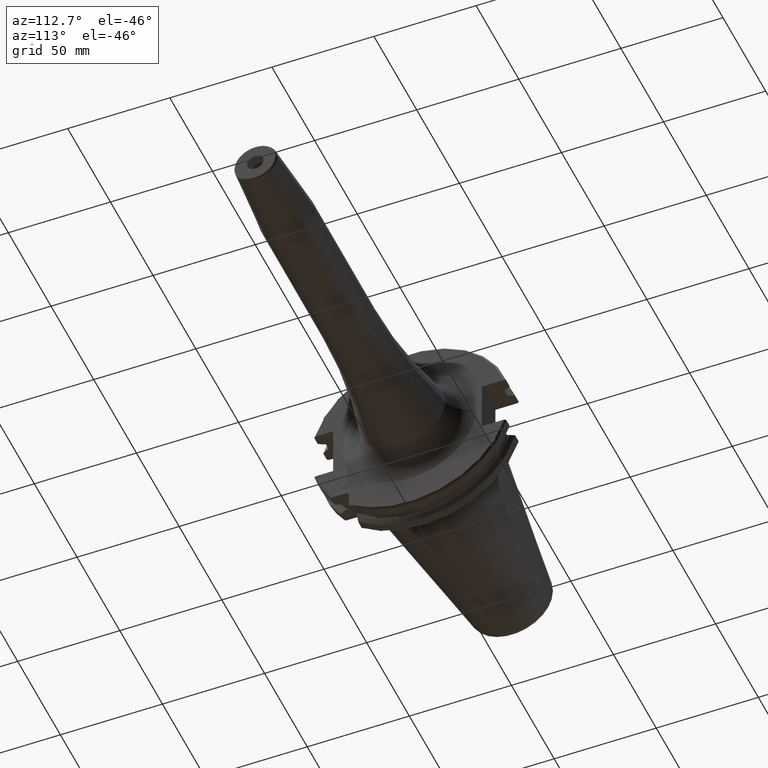
[diagram: clean part render]
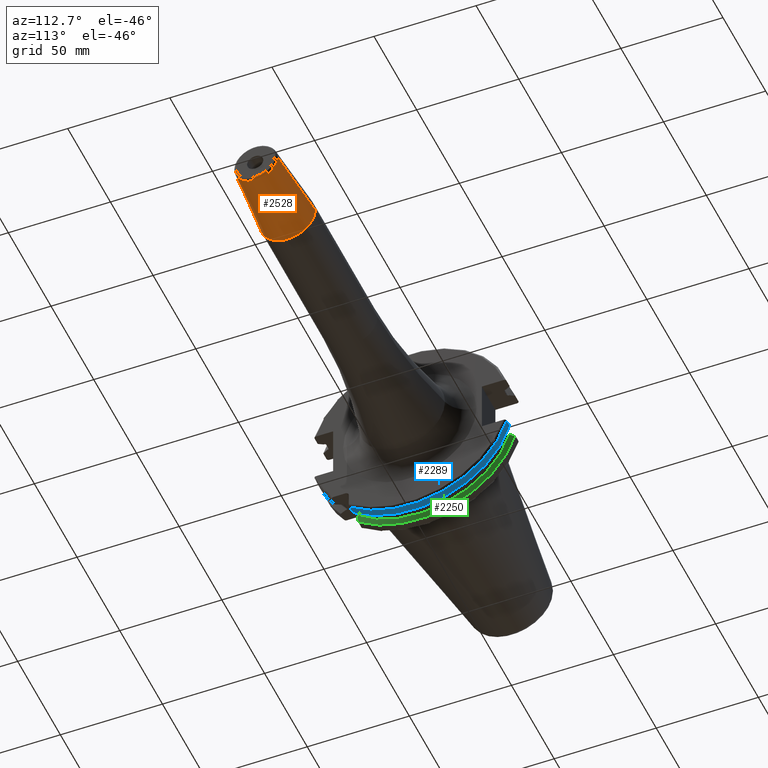
[diagram: same view with three faces highlighted in distinct colors, each labeled with its STEP entity id]
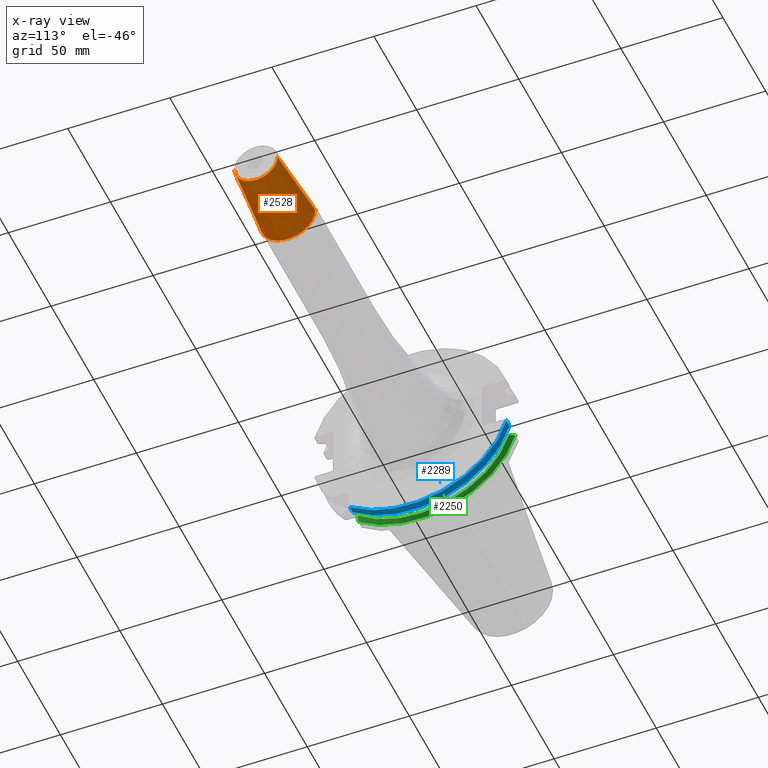
[diagram: x-ray of the same camera — body ghosted, the three highlighted faces saturated]
A machine part, auxiliary view with three faces highlighted in distinct colors.
The next image is the same camera in x-ray (body ghosted, the three faces saturated) — at least one of them is partly hidden behind the body in this view.
Their STEP definitions:

[orange] entity #2528 — the highlighted conical surface has half-angle 4.5 deg.
#935=CARTESIAN_POINT('',(1.618813857915E2,0.E0,0.E0));
#936=DIRECTION('',(-1.E0,0.E0,0.E0));
#937=DIRECTION('',(0.E0,1.E0,0.E0));
#938=AXIS2_PLACEMENT_3D('',#935,#936,#937);
#969=CARTESIAN_POINT('',(1.990784590957E2,0.E0,0.E0));
#970=DIRECTION('',(-1.E0,0.E0,0.E0));
#971=DIRECTION('',(0.E0,1.E0,0.E0));
#972=AXIS2_PLACEMENT_3D('',#969,#970,#971);
#974=DIRECTION('',(-9.969173337331E-1,7.845909572785E-2,1.323262560744E-13));
#975=VECTOR('',#974,3.731209403789E1);
#976=CARTESIAN_POINT('',(1.990784590957E2,1.057252684207E1,
-4.935716437151E-12));
#977=LINE('',#976,#975);
#978=DIRECTION('',(-9.969173337331E-1,-7.845909572785E-2,-1.323175808637E-13));
#979=VECTOR('',#978,3.731209403789E1);
#980=CARTESIAN_POINT('',(1.990784590957E2,-1.057252684207E1,
4.935392746872E-12));
#981=LINE('',#980,#979);
#1452=CARTESIAN_POINT('',(1.618813857915E2,1.35E1,0.E0));
#1453=CARTESIAN_POINT('',(1.618813857915E2,-1.35E1,0.E0));
#1454=VERTEX_POINT('',#1452);
#1455=VERTEX_POINT('',#1453);
#1456=CARTESIAN_POINT('',(1.990784590957E2,1.057252684207E1,0.E0));
#1457=CARTESIAN_POINT('',(1.990784590957E2,-1.057252684207E1,0.E0));
#1458=VERTEX_POINT('',#1456);
#1459=VERTEX_POINT('',#1457);
#2517=CARTESIAN_POINT('',(1.804799224436E2,0.E0,0.E0));
#2518=DIRECTION('',(-1.E0,0.E0,0.E0));
#2519=DIRECTION('',(0.E0,1.E0,0.E0));
#2520=AXIS2_PLACEMENT_3D('',#2517,#2518,#2519);
#2521=CONICAL_SURFACE('',#2520,1.203626342104E1,4.5E0);
#2522=ORIENTED_EDGE('',*,*,#2508,.F.);
#2523=ORIENTED_EDGE('',*,*,#2483,.T.);
#2524=ORIENTED_EDGE('',*,*,#2453,.T.);
#2525=ORIENTED_EDGE('',*,*,#2480,.F.);
#2526=EDGE_LOOP('',(#2522,#2523,#2524,#2525));
#2527=FACE_OUTER_BOUND('',#2526,.F.);
#2528=ADVANCED_FACE('',(#2527),#2521,.T.);
#939=CIRCLE('',#938,1.35E1);
#973=CIRCLE('',#972,1.057252684207E1);
#2453=EDGE_CURVE('',#1454,#1455,#939,.T.);
#2480=EDGE_CURVE('',#1459,#1455,#981,.T.);
#2483=EDGE_CURVE('',#1458,#1454,#977,.T.);
#2508=EDGE_CURVE('',#1458,#1459,#973,.T.);

[blue] entity #2289 — the highlighted cylindrical surface (partial cylindrical patch) has radius 48.7375 mm, axis along (1, 0, 0).
#736=DIRECTION('',(1.E0,0.E0,0.E0));
#737=VECTOR('',#736,3.634621614173E0);
#738=CARTESIAN_POINT('',(1.441537838583E1,4.699929686974E1,-1.29E1));
#739=LINE('',#738,#737);
#740=CARTESIAN_POINT('',(1.441537838583E1,0.E0,0.E0));
#741=DIRECTION('',(1.E0,0.E0,0.E0));
#742=DIRECTION('',(0.E0,-6.124647345473E-1,-7.904979120376E-1));
#743=AXIS2_PLACEMENT_3D('',#740,#741,#742);
#745=DIRECTION('',(1.E0,0.E0,0.E0));
#746=VECTOR('',#745,3.634621614173E0);
#747=CARTESIAN_POINT('',(1.441537838583E1,-2.985E1,-3.852689198793E1));
#748=LINE('',#747,#746);
#749=CARTESIAN_POINT('',(1.805E1,0.E0,0.E0));
#750=DIRECTION('',(-1.E0,0.E0,0.E0));
#751=DIRECTION('',(0.E0,9.643354064066E-1,-2.646832521159E-1));
#752=AXIS2_PLACEMENT_3D('',#749,#750,#751);
#790=CARTESIAN_POINT('',(1.441537838583E1,4.699929686974E1,-1.29E1));
#802=CARTESIAN_POINT('',(1.441537838583E1,-2.985E1,-3.852689198793E1));
#1344=VERTEX_POINT('',#790);
#1394=CARTESIAN_POINT('',(1.805E1,4.699929686974E1,-1.29E1));
#1395=VERTEX_POINT('',#1394);
#1419=CARTESIAN_POINT('',(1.805E1,-2.985E1,-3.852689198793E1));
#1420=VERTEX_POINT('',#1419);
#1444=VERTEX_POINT('',#802);
#2276=CARTESIAN_POINT('',(-1.076325E2,0.E0,0.E0));
#2277=DIRECTION('',(1.E0,0.E0,0.E0));
#2278=DIRECTION('',(0.E0,-1.E0,0.E0));
#2279=AXIS2_PLACEMENT_3D('',#2276,#2277,#2278);
#2280=CYLINDRICAL_SURFACE('',#2279,4.87375E1);
#2281=ORIENTED_EDGE('',*,*,#1849,.F.);
#2283=ORIENTED_EDGE('',*,*,#2282,.F.);
#2284=ORIENTED_EDGE('',*,*,#1699,.T.);
#2286=ORIENTED_EDGE('',*,*,#2285,.F.);
#2287=EDGE_LOOP('',(#2281,#2283,#2284,#2286));
#2288=FACE_OUTER_BOUND('',#2287,.F.);
#2289=ADVANCED_FACE('',(#2288),#2280,.T.);
#744=CIRCLE('',#743,4.87375E1);
#753=CIRCLE('',#752,4.87375E1);
#1699=EDGE_CURVE('',#1444,#1420,#748,.T.);
#1849=EDGE_CURVE('',#1344,#1395,#739,.T.);
#2282=EDGE_CURVE('',#1444,#1344,#744,.T.);
#2285=EDGE_CURVE('',#1395,#1420,#753,.T.);

[green] entity #2250 — the highlighted conical surface has half-angle 60 deg.
#311=CARTESIAN_POINT('',(9.2625E0,0.E0,0.E0));
#312=DIRECTION('',(-1.E0,0.E0,0.E0));
#313=DIRECTION('',(0.E0,9.606411165078E-1,-2.777924499957E-1));
#314=AXIS2_PLACEMENT_3D('',#311,#312,#313);
#695=CARTESIAN_POINT('',(9.2625E0,4.460981716077E1,-1.29E1));
#696=CARTESIAN_POINT('',(9.118283773553E0,4.486984125009E1,-1.29E1));
#697=CARTESIAN_POINT('',(8.827633549554E0,4.539353719098E1,-1.29E1));
#698=CARTESIAN_POINT('',(8.385043355543E0,4.618996220278E1,-1.29E1));
#699=CARTESIAN_POINT('',(8.085504386120E0,4.672829507383E1,-1.29E1));
#700=CARTESIAN_POINT('',(7.934621614173E0,4.699929686974E1,-1.29E1));
#702=CARTESIAN_POINT('',(9.2625E0,-2.985E1,-3.557278857662E1));
#703=CARTESIAN_POINT('',(9.122796459387E0,-2.985E1,-3.588866659244E1));
#704=CARTESIAN_POINT('',(8.838204990616E0,-2.985E1,-3.652866450573E1));
#705=CARTESIAN_POINT('',(8.396067032347E0,-2.985E1,-3.751242476101E1));
#706=CARTESIAN_POINT('',(8.090246731407E0,-2.985E1,-3.818590359837E1));
#707=CARTESIAN_POINT('',(7.934621614173E0,-2.985E1,-3.852689198793E1));
#731=CARTESIAN_POINT('',(7.934621614173E0,0.E0,0.E0));
#732=DIRECTION('',(1.E0,0.E0,0.E0));
#733=DIRECTION('',(0.E0,-6.124647345473E-1,-7.904979120376E-1));
#734=AXIS2_PLACEMENT_3D('',#731,#732,#733);
#1302=CARTESIAN_POINT('',(9.2625E0,4.460981716077E1,-1.29E1));
#1304=VERTEX_POINT('',#1302);
#1346=VERTEX_POINT('',#700);
#1401=CARTESIAN_POINT('',(9.2625E0,-2.985E1,-3.557278857662E1));
#1402=VERTEX_POINT('',#1401);
#1445=VERTEX_POINT('',#707);
#2238=CARTESIAN_POINT('',(8.598560807087E0,0.E0,0.E0));
#2239=DIRECTION('',(-1.E0,0.E0,0.E0));
#2240=DIRECTION('',(0.E0,1.E0,0.E0));
#2241=AXIS2_PLACEMENT_3D('',#2238,#2239,#2240);
#2242=CONICAL_SURFACE('',#2241,4.758752358474E1,6.E1);
#2243=ORIENTED_EDGE('',*,*,#1859,.T.);
#2245=ORIENTED_EDGE('',*,*,#2244,.F.);
#2246=ORIENTED_EDGE('',*,*,#1713,.F.);
#2247=ORIENTED_EDGE('',*,*,#1886,.F.);
#2248=EDGE_LOOP('',(#2243,#2245,#2246,#2247));
#2249=FACE_OUTER_BOUND('',#2248,.F.);
#2250=ADVANCED_FACE('',(#2249),#2242,.T.);
#315=CIRCLE('',#314,4.643754716948E1);
#701=B_SPLINE_CURVE_WITH_KNOTS('',3,(#695,#696,#697,#698,#699,#700),
.UNSPECIFIED.,.F.,.F.,(4,1,1,4),(0.E0,3.333333333333E-1,6.666666666667E-1,1.E0),
.UNSPECIFIED.);
#708=B_SPLINE_CURVE_WITH_KNOTS('',3,(#702,#703,#704,#705,#706,#707),
.UNSPECIFIED.,.F.,.F.,(4,1,1,4),(0.E0,3.333333333333E-1,6.666666666667E-1,1.E0),
.UNSPECIFIED.);
#735=CIRCLE('',#734,4.87375E1);
#1713=EDGE_CURVE('',#1402,#1445,#708,.T.);
#1859=EDGE_CURVE('',#1304,#1346,#701,.T.);
#1886=EDGE_CURVE('',#1304,#1402,#315,.T.);
#2244=EDGE_CURVE('',#1445,#1346,#735,.T.);